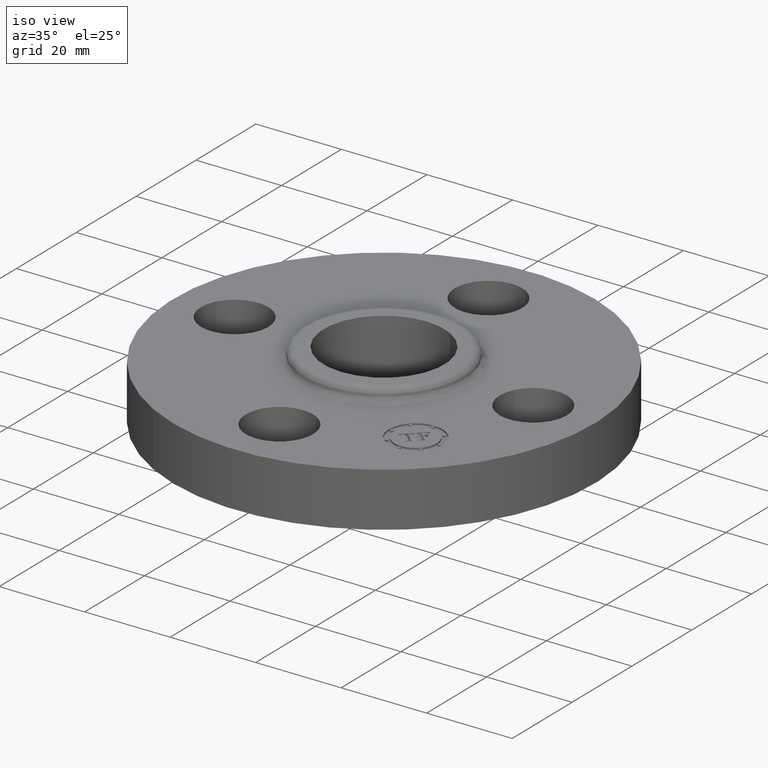
[diagram: clean part render]
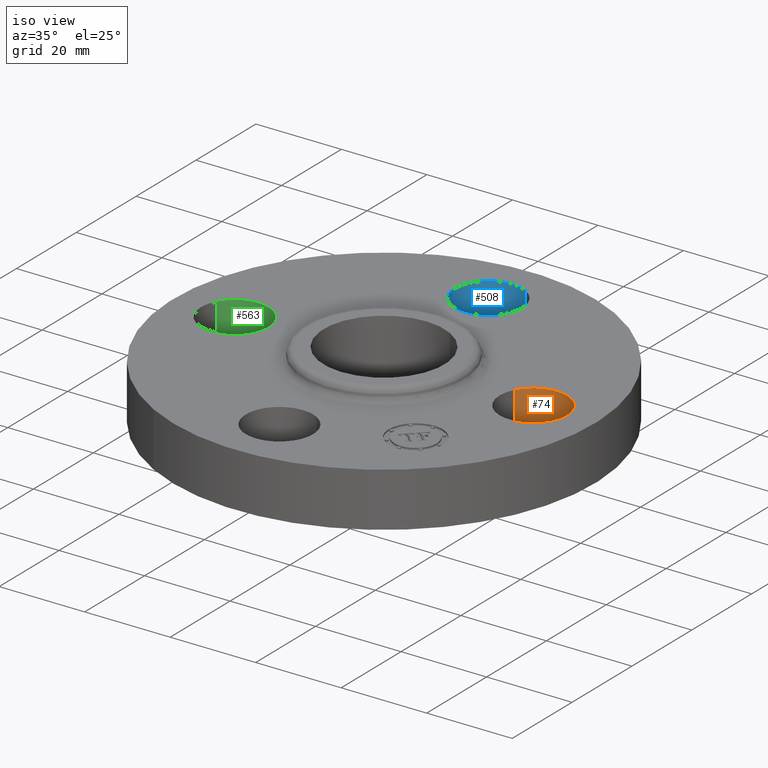
[diagram: same view with three faces highlighted in distinct colors, each labeled with its STEP entity id]
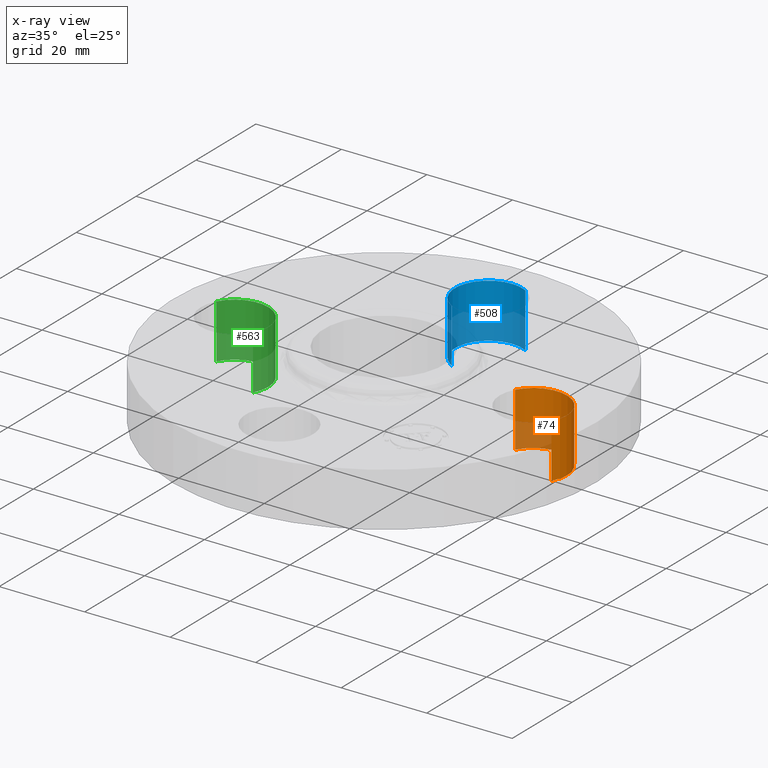
[diagram: x-ray of the same camera — body ghosted, the three highlighted faces saturated]
A machine part, iso view with three faces highlighted in distinct colors.
The next image is the same camera in x-ray (body ghosted, the three faces saturated) — at least one of them is partly hidden behind the body in this view.
Their STEP definitions:

[orange] entity #74 — the highlighted cylindrical surface (partial cylindrical patch) has radius 7.874 mm, axis along (0, -0, -1).
#38=AXIS2_PLACEMENT_3D('Cylinder Axis2P3D',#35,#36,#37) ;
#51=AXIS2_PLACEMENT_3D('Circle Axis2P3D',#49,#50,$) ;
#65=AXIS2_PLACEMENT_3D('Circle Axis2P3D',#63,#64,$) ;
#35=CARTESIAN_POINT('Axis2P3D Location',(1.37500000001,0.,0.496062992128)) ;
#40=CARTESIAN_POINT('Line Origine',(1.10294940582,0.148621916968,0.250000000001)) ;
#44=CARTESIAN_POINT('Vertex',(1.10294940582,0.148621916968,0.)) ;
#46=CARTESIAN_POINT('Vertex',(1.10294940582,0.148621916968,0.500000000002)) ;
#49=CARTESIAN_POINT('Axis2P3D Location',(1.37500000001,0.,0.)) ;
#53=CARTESIAN_POINT('Vertex',(1.64705059419,-0.148621916968,0.)) ;
#56=CARTESIAN_POINT('Line Origine',(1.64705059419,-0.148621916968,0.250000000001)) ;
#60=CARTESIAN_POINT('Vertex',(1.64705059419,-0.148621916968,0.500000000002)) ;
#63=CARTESIAN_POINT('Axis2P3D Location',(1.37500000001,0.,0.500000000002)) ;
#36=DIRECTION('Axis2P3D Direction',(0.,-0.,-0.0393700787402)) ;
#37=DIRECTION('Axis2P3D XDirection',(0.0345504945626,-0.0188750212049,0.)) ;
#41=DIRECTION('Vector Direction',(0.,0.,-0.0393700787402)) ;
#50=DIRECTION('Axis2P3D Direction',(0.,-0.,-0.0393700787402)) ;
#57=DIRECTION('Vector Direction',(0.,0.,-0.0393700787402)) ;
#64=DIRECTION('Axis2P3D Direction',(0.,-0.,-0.0393700787402)) ;
#42=VECTOR('Line Direction',#41,0.0393700787402) ;
#58=VECTOR('Line Direction',#57,0.0393700787402) ;
#69=ORIENTED_EDGE('',*,*,#48,.F.) ;
#70=ORIENTED_EDGE('',*,*,#55,.T.) ;
#71=ORIENTED_EDGE('',*,*,#62,.T.) ;
#72=ORIENTED_EDGE('',*,*,#67,.F.) ;
#74=ADVANCED_FACE('PartBody',(#73),#39,.F.) ;
#52=CIRCLE('generated circle',#51,0.310000000001) ;
#66=CIRCLE('generated circle',#65,0.310000000001) ;
#39=CYLINDRICAL_SURFACE('generated cylinder',#38,0.310000000001) ;
#48=EDGE_CURVE('',#45,#47,#43,.F.) ;
#55=EDGE_CURVE('',#45,#54,#52,.T.) ;
#62=EDGE_CURVE('',#54,#61,#59,.F.) ;
#67=EDGE_CURVE('',#47,#61,#66,.T.) ;
#68=EDGE_LOOP('',(#69,#70,#71,#72)) ;
#73=FACE_OUTER_BOUND('',#68,.T.) ;
#43=LINE('Line',#40,#42) ;
#59=LINE('Line',#56,#58) ;
#45=VERTEX_POINT('',#44) ;
#47=VERTEX_POINT('',#46) ;
#54=VERTEX_POINT('',#53) ;
#61=VERTEX_POINT('',#60) ;

[blue] entity #508 — the highlighted cylindrical surface (partial cylindrical patch) has radius 7.874 mm, axis along (0, 0, -1).
#461=AXIS2_PLACEMENT_3D('Circle Axis2P3D',#459,#460,$) ;
#481=AXIS2_PLACEMENT_3D('Cylinder Axis2P3D',#478,#479,#480) ;
#499=AXIS2_PLACEMENT_3D('Circle Axis2P3D',#497,#498,$) ;
#459=CARTESIAN_POINT('Axis2P3D Location',(-3.84644197508E-016,1.37500000001,0.)) ;
#463=CARTESIAN_POINT('Vertex',(-0.148621916968,1.10294940582,0.)) ;
#465=CARTESIAN_POINT('Vertex',(0.148621916968,1.64705059419,0.)) ;
#478=CARTESIAN_POINT('Axis2P3D Location',(-2.52583402325E-016,1.37500000001,0.496062992128)) ;
#483=CARTESIAN_POINT('Line Origine',(-0.148621916968,1.10294940582,0.250000000001)) ;
#487=CARTESIAN_POINT('Vertex',(-0.148621916968,1.10294940582,0.500000000002)) ;
#490=CARTESIAN_POINT('Line Origine',(0.148621916968,1.64705059419,0.250000000001)) ;
#494=CARTESIAN_POINT('Vertex',(0.148621916968,1.64705059419,0.500000000002)) ;
#497=CARTESIAN_POINT('Axis2P3D Location',(-2.52583402325E-016,1.37500000001,0.500000000002)) ;
#460=DIRECTION('Axis2P3D Direction',(0.,0.,-0.0393700787402)) ;
#479=DIRECTION('Axis2P3D Direction',(0.,0.,-0.0393700787402)) ;
#480=DIRECTION('Axis2P3D XDirection',(0.0188750212049,0.0345504945626,0.)) ;
#484=DIRECTION('Vector Direction',(0.,0.,-0.0393700787402)) ;
#491=DIRECTION('Vector Direction',(0.,0.,-0.0393700787402)) ;
#498=DIRECTION('Axis2P3D Direction',(0.,0.,-0.0393700787402)) ;
#485=VECTOR('Line Direction',#484,0.0393700787402) ;
#492=VECTOR('Line Direction',#491,0.0393700787402) ;
#503=ORIENTED_EDGE('',*,*,#489,.F.) ;
#504=ORIENTED_EDGE('',*,*,#467,.T.) ;
#505=ORIENTED_EDGE('',*,*,#496,.T.) ;
#506=ORIENTED_EDGE('',*,*,#501,.F.) ;
#508=ADVANCED_FACE('PartBody',(#507),#482,.F.) ;
#462=CIRCLE('generated circle',#461,0.310000000001) ;
#500=CIRCLE('generated circle',#499,0.310000000001) ;
#482=CYLINDRICAL_SURFACE('generated cylinder',#481,0.310000000001) ;
#467=EDGE_CURVE('',#464,#466,#462,.T.) ;
#489=EDGE_CURVE('',#464,#488,#486,.F.) ;
#496=EDGE_CURVE('',#466,#495,#493,.F.) ;
#501=EDGE_CURVE('',#488,#495,#500,.T.) ;
#502=EDGE_LOOP('',(#503,#504,#505,#506)) ;
#507=FACE_OUTER_BOUND('',#502,.T.) ;
#486=LINE('Line',#483,#485) ;
#493=LINE('Line',#490,#492) ;
#464=VERTEX_POINT('',#463) ;
#466=VERTEX_POINT('',#465) ;
#488=VERTEX_POINT('',#487) ;
#495=VERTEX_POINT('',#494) ;

[green] entity #563 — the highlighted cylindrical surface (partial cylindrical patch) has radius 7.874 mm, axis along (-0, 0, -1).
#452=AXIS2_PLACEMENT_3D('Circle Axis2P3D',#450,#451,$) ;
#524=AXIS2_PLACEMENT_3D('Cylinder Axis2P3D',#521,#522,#523) ;
#554=AXIS2_PLACEMENT_3D('Circle Axis2P3D',#552,#553,$) ;
#445=CARTESIAN_POINT('Vertex',(-1.10294940582,-0.148621916968,0.)) ;
#447=CARTESIAN_POINT('Vertex',(-1.64705059419,0.148621916968,0.)) ;
#450=CARTESIAN_POINT('Axis2P3D Location',(-1.37500000001,-1.39870617276E-016,0.)) ;
#521=CARTESIAN_POINT('Axis2P3D Location',(-1.37500000001,-1.68388934883E-016,0.496062992128)) ;
#526=CARTESIAN_POINT('Line Origine',(-1.10294940582,-0.148621916968,0.250000000001)) ;
#530=CARTESIAN_POINT('Vertex',(-1.10294940582,-0.148621916968,0.500000000002)) ;
#533=CARTESIAN_POINT('Line Origine',(-1.64705059419,0.148621916968,0.250000000001)) ;
#537=CARTESIAN_POINT('Vertex',(-1.64705059419,0.148621916968,0.500000000002)) ;
#552=CARTESIAN_POINT('Axis2P3D Location',(-1.37500000001,-1.68388934883E-016,0.500000000002)) ;
#451=DIRECTION('Axis2P3D Direction',(0.,0.,-0.0393700787402)) ;
#522=DIRECTION('Axis2P3D Direction',(-0.,0.,-0.0393700787402)) ;
#523=DIRECTION('Axis2P3D XDirection',(-0.0345504945626,0.0188750212049,0.)) ;
#527=DIRECTION('Vector Direction',(0.,0.,-0.0393700787402)) ;
#534=DIRECTION('Vector Direction',(0.,0.,-0.0393700787402)) ;
#553=DIRECTION('Axis2P3D Direction',(-0.,0.,-0.0393700787402)) ;
#528=VECTOR('Line Direction',#527,0.0393700787402) ;
#535=VECTOR('Line Direction',#534,0.0393700787402) ;
#558=ORIENTED_EDGE('',*,*,#539,.F.) ;
#559=ORIENTED_EDGE('',*,*,#454,.T.) ;
#560=ORIENTED_EDGE('',*,*,#532,.T.) ;
#561=ORIENTED_EDGE('',*,*,#556,.F.) ;
#563=ADVANCED_FACE('PartBody',(#562),#525,.F.) ;
#453=CIRCLE('generated circle',#452,0.310000000001) ;
#555=CIRCLE('generated circle',#554,0.310000000001) ;
#525=CYLINDRICAL_SURFACE('generated cylinder',#524,0.310000000001) ;
#454=EDGE_CURVE('',#448,#446,#453,.T.) ;
#532=EDGE_CURVE('',#446,#531,#529,.F.) ;
#539=EDGE_CURVE('',#448,#538,#536,.F.) ;
#556=EDGE_CURVE('',#538,#531,#555,.T.) ;
#557=EDGE_LOOP('',(#558,#559,#560,#561)) ;
#562=FACE_OUTER_BOUND('',#557,.T.) ;
#529=LINE('Line',#526,#528) ;
#536=LINE('Line',#533,#535) ;
#446=VERTEX_POINT('',#445) ;
#448=VERTEX_POINT('',#447) ;
#531=VERTEX_POINT('',#530) ;
#538=VERTEX_POINT('',#537) ;